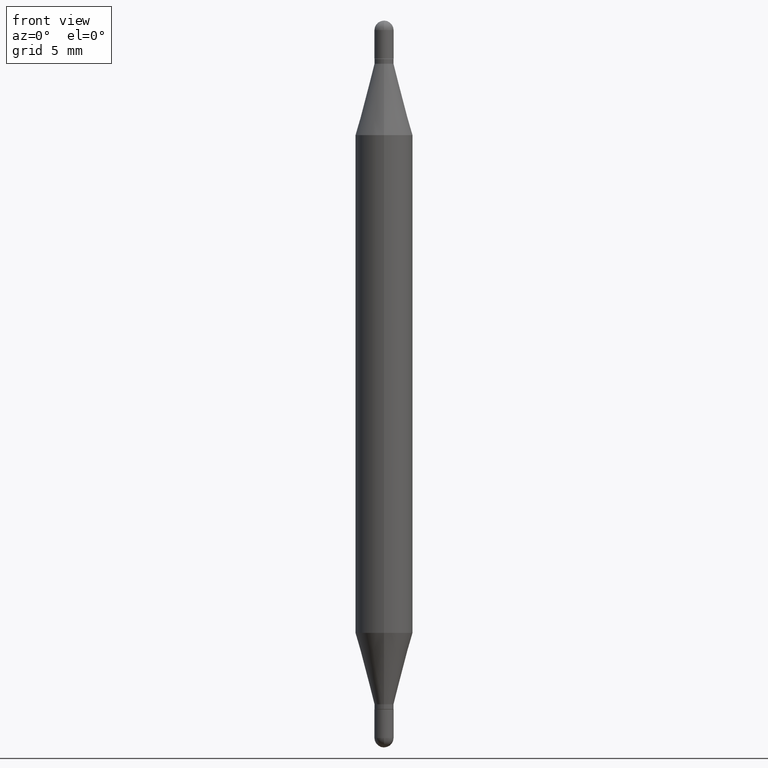
[diagram: clean part render]
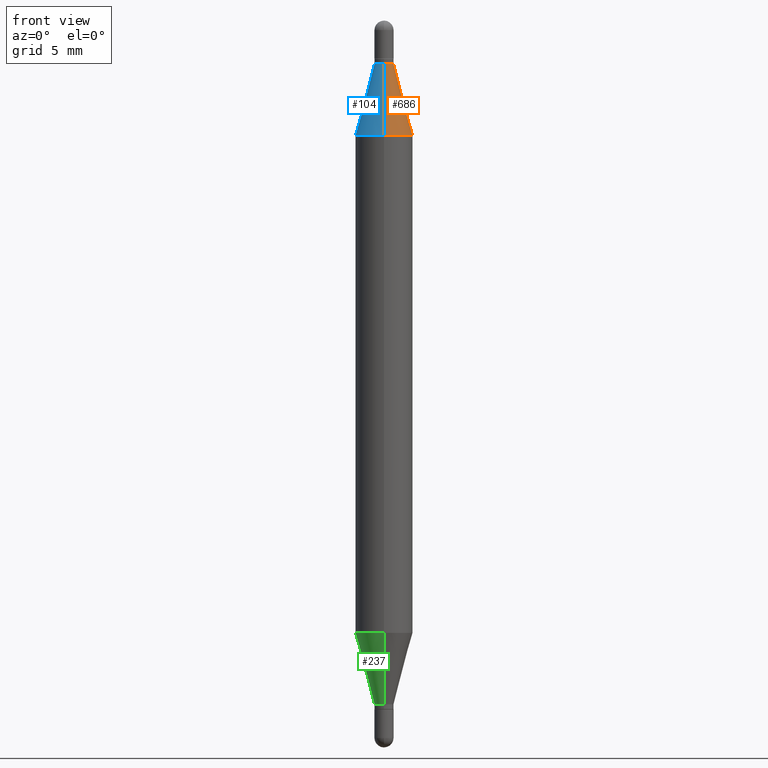
[diagram: same view with three faces highlighted in distinct colors, each labeled with its STEP entity id]
A machine part, front view with three faces highlighted in distinct colors.
Their STEP definitions:

[orange] entity #686 — the highlighted conical surface has half-angle 15 deg.
#4 = DIRECTION ( 'NONE',  ( 2.452431780940306437E-29, 3.489585843135142611E-15, 1.000000000000000000 ) ) ;
#11 = LINE ( 'NONE', #525, #692 ) ;
#30 = VERTEX_POINT ( 'NONE', #1097 ) ;
#52 = ORIENTED_EDGE ( 'NONE', *, *, #774, .T. ) ;
#171 = VECTOR ( 'NONE', #850, 39.37007874015748143 ) ;
#196 = FACE_OUTER_BOUND ( 'NONE', #728, .T. ) ;
#267 = ORIENTED_EDGE ( 'NONE', *, *, #964, .T. ) ;
#319 = CARTESIAN_POINT ( 'NONE',  ( 3.450816758961104707E-29, -3.045319776689201457E-16, -0.08900000000000006517 ) ) ;
#375 = DIRECTION ( 'NONE',  ( -6.982962677686265922E-15, -1.000000000000000000, 3.466812174700886453E-15 ) ) ;
#411 = AXIS2_PLACEMENT_3D ( 'NONE', #319, #907, #375 ) ;
#442 = ORIENTED_EDGE ( 'NONE', *, *, #649, .F. ) ;
#445 = VERTEX_POINT ( 'NONE', #451 ) ;
#451 = CARTESIAN_POINT ( 'NONE',  ( 1.351518105561320303E-16, 0.01969999999999944365, -0.08900000000000013456 ) ) ;
#455 = DIRECTION ( 'NONE',  ( -2.452431780940306437E-29, -3.489585843135142611E-15, -1.000000000000000000 ) ) ;
#465 = ORIENTED_EDGE ( 'NONE', *, *, #1117, .F. ) ;
#525 = CARTESIAN_POINT ( 'NONE',  ( 1.351518105561319317E-16, 0.01969999999999944365, -0.08900000000000013456 ) ) ;
#560 = CARTESIAN_POINT ( 'NONE',  ( 4.051124067684398803E-16, 0.05904999999999917953, -0.2358561992778360206 ) ) ;
#611 = CARTESIAN_POINT ( 'NONE',  ( -1.375643647503831486E-16, -0.01970000000000004733, -0.08899999999999999578 ) ) ;
#619 = VERTEX_POINT ( 'NONE', #560 ) ;
#622 = AXIS2_PLACEMENT_3D ( 'NONE', #1059, #455, #975 ) ;
#649 = EDGE_CURVE ( 'NONE', #738, #445, #1112, .T. ) ;
#668 = DIRECTION ( 'NONE',  ( -6.982962677686265922E-15, -1.000000000000000000, 3.469747663417777002E-15 ) ) ;
#678 = DIRECTION ( 'NONE',  ( 1.775627540710965497E-15, 0.2588190451025182415, -0.9659258262890689783 ) ) ;
#686 = ADVANCED_FACE ( 'NONE', ( #196 ), #1040, .T. ) ;
#692 = VECTOR ( 'NONE', #678, 39.37007874015748143 ) ;
#728 = EDGE_LOOP ( 'NONE', ( #465, #442, #52, #267 ) ) ;
#738 = VERTEX_POINT ( 'NONE', #611 ) ;
#756 = CARTESIAN_POINT ( 'NONE',  ( -1.375643647503831486E-16, -0.01970000000000004733, -0.08899999999999999578 ) ) ;
#774 = EDGE_CURVE ( 'NONE', #738, #30, #973, .T. ) ;
#835 = CARTESIAN_POINT ( 'NONE',  ( 3.090661948624037332E-29, -8.169992916454894911E-16, -0.2358561992778358263 ) ) ;
#843 = CIRCLE ( 'NONE', #1024, 0.05905000000000000526 ) ;
#850 = DIRECTION ( 'NONE',  ( -1.807323732225330534E-15, -0.2588190451025250138, -0.9659258262890670910 ) ) ;
#907 = DIRECTION ( 'NONE',  ( 2.452431780940306437E-29, 3.489585843135142611E-15, 1.000000000000000000 ) ) ;
#964 = EDGE_CURVE ( 'NONE', #30, #619, #843, .T. ) ;
#973 = LINE ( 'NONE', #756, #171 ) ;
#975 = DIRECTION ( 'NONE',  ( -6.982962677686265922E-15, -1.000000000000000000, 3.466812174700886453E-15 ) ) ;
#1024 = AXIS2_PLACEMENT_3D ( 'NONE', #835, #4, #668 ) ;
#1040 = CONICAL_SURFACE ( 'NONE', #622, 0.01969999999999974549, 0.2617993877991502960 ) ;
#1059 = CARTESIAN_POINT ( 'NONE',  ( 3.450816758961104707E-29, -3.045319776689201457E-16, -0.08900000000000006517 ) ) ;
#1097 = CARTESIAN_POINT ( 'NONE',  ( -4.123439461173430699E-16, -0.05905000000000081711, -0.2358561992778356042 ) ) ;
#1112 = CIRCLE ( 'NONE', #411, 0.01969999999999974549 ) ;
#1117 = EDGE_CURVE ( 'NONE', #445, #619, #11, .T. ) ;

[blue] entity #104 — the highlighted conical surface has half-angle 15 deg.
#11 = LINE ( 'NONE', #525, #692 ) ;
#30 = VERTEX_POINT ( 'NONE', #1097 ) ;
#69 = AXIS2_PLACEMENT_3D ( 'NONE', #514, #848, #96 ) ;
#96 = DIRECTION ( 'NONE',  ( -6.982962677686265922E-15, -1.000000000000000000, 3.469747663417777002E-15 ) ) ;
#104 = ADVANCED_FACE ( 'NONE', ( #747 ), #327, .T. ) ;
#168 = AXIS2_PLACEMENT_3D ( 'NONE', #897, #463, #534 ) ;
#171 = VECTOR ( 'NONE', #850, 39.37007874015748143 ) ;
#250 = CARTESIAN_POINT ( 'NONE',  ( 3.450816758961104707E-29, -3.045319776689201457E-16, -0.08900000000000006517 ) ) ;
#298 = ORIENTED_EDGE ( 'NONE', *, *, #1117, .T. ) ;
#327 = CONICAL_SURFACE ( 'NONE', #168, 0.01969999999999974549, 0.2617993877991502960 ) ;
#331 = AXIS2_PLACEMENT_3D ( 'NONE', #250, #1033, #588 ) ;
#388 = EDGE_CURVE ( 'NONE', #619, #30, #856, .T. ) ;
#428 = ORIENTED_EDGE ( 'NONE', *, *, #774, .F. ) ;
#445 = VERTEX_POINT ( 'NONE', #451 ) ;
#451 = CARTESIAN_POINT ( 'NONE',  ( 1.351518105561320303E-16, 0.01969999999999944365, -0.08900000000000013456 ) ) ;
#463 = DIRECTION ( 'NONE',  ( -2.452431780940306437E-29, -3.489585843135142611E-15, -1.000000000000000000 ) ) ;
#514 = CARTESIAN_POINT ( 'NONE',  ( 3.090661948624037332E-29, -8.169992916454894911E-16, -0.2358561992778358263 ) ) ;
#522 = EDGE_LOOP ( 'NONE', ( #537, #298, #982, #428 ) ) ;
#525 = CARTESIAN_POINT ( 'NONE',  ( 1.351518105561319317E-16, 0.01969999999999944365, -0.08900000000000013456 ) ) ;
#534 = DIRECTION ( 'NONE',  ( -6.982962677686265922E-15, -1.000000000000000000, 3.466812174700886453E-15 ) ) ;
#537 = ORIENTED_EDGE ( 'NONE', *, *, #916, .F. ) ;
#560 = CARTESIAN_POINT ( 'NONE',  ( 4.051124067684398803E-16, 0.05904999999999917953, -0.2358561992778360206 ) ) ;
#588 = DIRECTION ( 'NONE',  ( -6.982962677686265922E-15, -1.000000000000000000, 3.466812174700886453E-15 ) ) ;
#611 = CARTESIAN_POINT ( 'NONE',  ( -1.375643647503831486E-16, -0.01970000000000004733, -0.08899999999999999578 ) ) ;
#619 = VERTEX_POINT ( 'NONE', #560 ) ;
#678 = DIRECTION ( 'NONE',  ( 1.775627540710965497E-15, 0.2588190451025182415, -0.9659258262890689783 ) ) ;
#692 = VECTOR ( 'NONE', #678, 39.37007874015748143 ) ;
#738 = VERTEX_POINT ( 'NONE', #611 ) ;
#747 = FACE_OUTER_BOUND ( 'NONE', #522, .T. ) ;
#756 = CARTESIAN_POINT ( 'NONE',  ( -1.375643647503831486E-16, -0.01970000000000004733, -0.08899999999999999578 ) ) ;
#774 = EDGE_CURVE ( 'NONE', #738, #30, #973, .T. ) ;
#779 = CIRCLE ( 'NONE', #331, 0.01969999999999974549 ) ;
#848 = DIRECTION ( 'NONE',  ( 2.452431780940306437E-29, 3.489585843135142611E-15, 1.000000000000000000 ) ) ;
#850 = DIRECTION ( 'NONE',  ( -1.807323732225330534E-15, -0.2588190451025250138, -0.9659258262890670910 ) ) ;
#856 = CIRCLE ( 'NONE', #69, 0.05905000000000000526 ) ;
#897 = CARTESIAN_POINT ( 'NONE',  ( 3.450816758961104707E-29, -3.045319776689201457E-16, -0.08900000000000006517 ) ) ;
#916 = EDGE_CURVE ( 'NONE', #445, #738, #779, .T. ) ;
#973 = LINE ( 'NONE', #756, #171 ) ;
#982 = ORIENTED_EDGE ( 'NONE', *, *, #388, .T. ) ;
#1033 = DIRECTION ( 'NONE',  ( 2.452431780940306437E-29, 3.489585843135142611E-15, 1.000000000000000000 ) ) ;
#1097 = CARTESIAN_POINT ( 'NONE',  ( -4.123439461173430699E-16, -0.05905000000000081711, -0.2358561992778356042 ) ) ;
#1117 = EDGE_CURVE ( 'NONE', #445, #619, #11, .T. ) ;

[green] entity #237 — the highlighted conical surface has half-angle 15 deg.
#100 = ORIENTED_EDGE ( 'NONE', *, *, #150, .F. ) ;
#103 = EDGE_CURVE ( 'NONE', #527, #716, #423, .T. ) ;
#110 = AXIS2_PLACEMENT_3D ( 'NONE', #502, #167, #745 ) ;
#150 = EDGE_CURVE ( 'NONE', #558, #527, #532, .T. ) ;
#167 = DIRECTION ( 'NONE',  ( -2.452431780940306437E-29, 3.481509962685831226E-15, 1.000000000000000000 ) ) ;
#193 = EDGE_CURVE ( 'NONE', #558, #389, #893, .T. ) ;
#201 = CARTESIAN_POINT ( 'NONE',  ( -1.375643647503831486E-16, -0.01970000000000464435, -1.407099999999999795 ) ) ;
#236 = DIRECTION ( 'NONE',  ( 1.839019923739600710E-15, 0.2588190451025250138, 0.9659258262890670910 ) ) ;
#237 = ADVANCED_FACE ( 'NONE', ( #624 ), #441, .T. ) ;
#241 = CARTESIAN_POINT ( 'NONE',  ( 3.090661948624037332E-29, -4.387551347627271097E-15, -1.260243800722164131 ) ) ;
#254 = CARTESIAN_POINT ( 'NONE',  ( -1.375643647503831486E-16, -0.01970000000000464435, -1.407099999999999795 ) ) ;
#318 = CARTESIAN_POINT ( 'NONE',  ( 1.399769189447726628E-16, 0.01969999999999484663, -1.407099999999999795 ) ) ;
#334 = LINE ( 'NONE', #254, #974 ) ;
#381 = CARTESIAN_POINT ( 'NONE',  ( -4.123439461173431192E-16, -0.05905000000000439758, -1.260243800722163909 ) ) ;
#389 = VERTEX_POINT ( 'NONE', #201 ) ;
#400 = DIRECTION ( 'NONE',  ( -6.982962677686265922E-15, -1.000000000000000000, 4.626330217890369336E-15 ) ) ;
#423 = CIRCLE ( 'NONE', #438, 0.05905000000000000526 ) ;
#438 = AXIS2_PLACEMENT_3D ( 'NONE', #241, #495, #400 ) ;
#441 = CONICAL_SURFACE ( 'NONE', #604, 0.01969999999999974549, 0.2617993877991502960 ) ;
#450 = ORIENTED_EDGE ( 'NONE', *, *, #103, .F. ) ;
#495 = DIRECTION ( 'NONE',  ( -2.452431780940306437E-29, 3.481509962685831226E-15, 1.000000000000000000 ) ) ;
#502 = CARTESIAN_POINT ( 'NONE',  ( 3.450816758961104707E-29, -4.898832668495232324E-15, -1.407099999999999795 ) ) ;
#503 = EDGE_CURVE ( 'NONE', #389, #716, #334, .T. ) ;
#527 = VERTEX_POINT ( 'NONE', #878 ) ;
#532 = LINE ( 'NONE', #1090, #1110 ) ;
#558 = VERTEX_POINT ( 'NONE', #318 ) ;
#564 = DIRECTION ( 'NONE',  ( -6.982962677686265922E-15, -1.000000000000000000, 0.000000000000000000 ) ) ;
#570 = EDGE_LOOP ( 'NONE', ( #100, #1088, #933, #450 ) ) ;
#604 = AXIS2_PLACEMENT_3D ( 'NONE', #1065, #987, #564 ) ;
#624 = FACE_OUTER_BOUND ( 'NONE', #570, .T. ) ;
#716 = VERTEX_POINT ( 'NONE', #381 ) ;
#745 = DIRECTION ( 'NONE',  ( -6.982962677686265922E-15, -1.000000000000000000, 0.000000000000000000 ) ) ;
#845 = DIRECTION ( 'NONE',  ( -1.807323732225330534E-15, -0.2588190451025182415, 0.9659258262890689783 ) ) ;
#878 = CARTESIAN_POINT ( 'NONE',  ( 4.051124067684273079E-16, 0.05904999999999561988, -1.260243800722164353 ) ) ;
#893 = CIRCLE ( 'NONE', #110, 0.01969999999999974549 ) ;
#933 = ORIENTED_EDGE ( 'NONE', *, *, #503, .T. ) ;
#974 = VECTOR ( 'NONE', #845, 39.37007874015748143 ) ;
#987 = DIRECTION ( 'NONE',  ( -2.452431780940306437E-29, 3.481509962685831226E-15, 1.000000000000000000 ) ) ;
#1065 = CARTESIAN_POINT ( 'NONE',  ( 3.450816758961104707E-29, -4.898832668495232324E-15, -1.407099999999999795 ) ) ;
#1088 = ORIENTED_EDGE ( 'NONE', *, *, #193, .T. ) ;
#1090 = CARTESIAN_POINT ( 'NONE',  ( 1.399769189447724162E-16, 0.01969999999999484663, -1.407099999999999795 ) ) ;
#1110 = VECTOR ( 'NONE', #236, 39.37007874015748143 ) ;